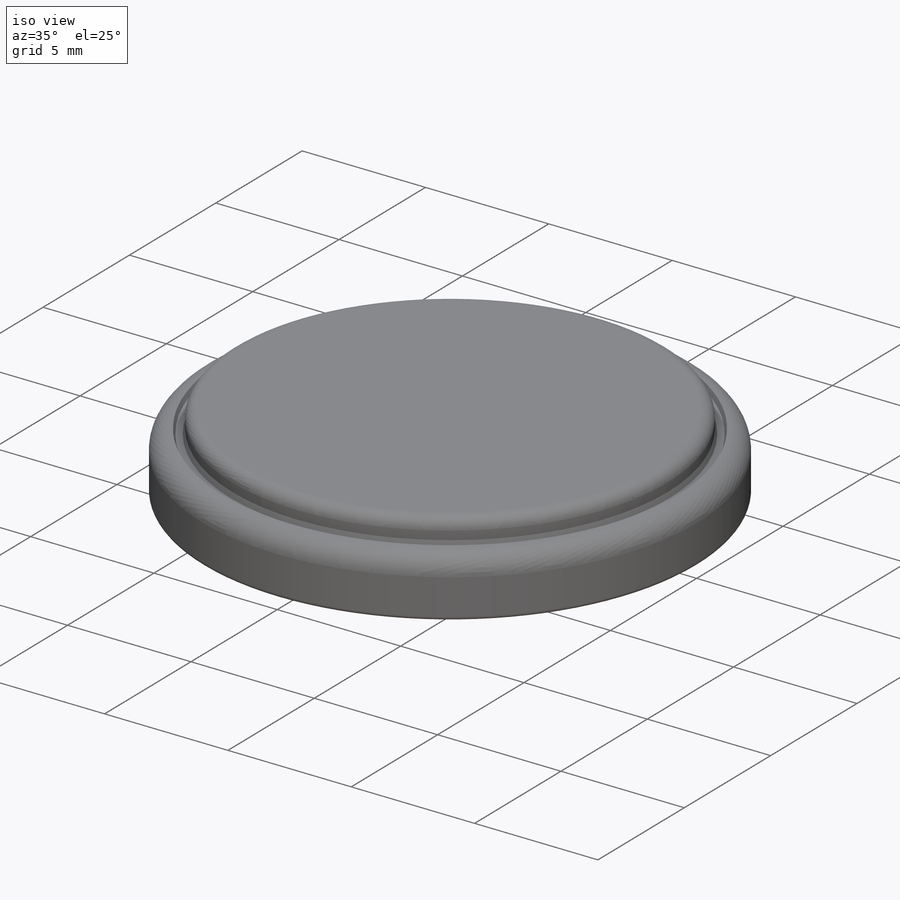
[diagram: iso view]
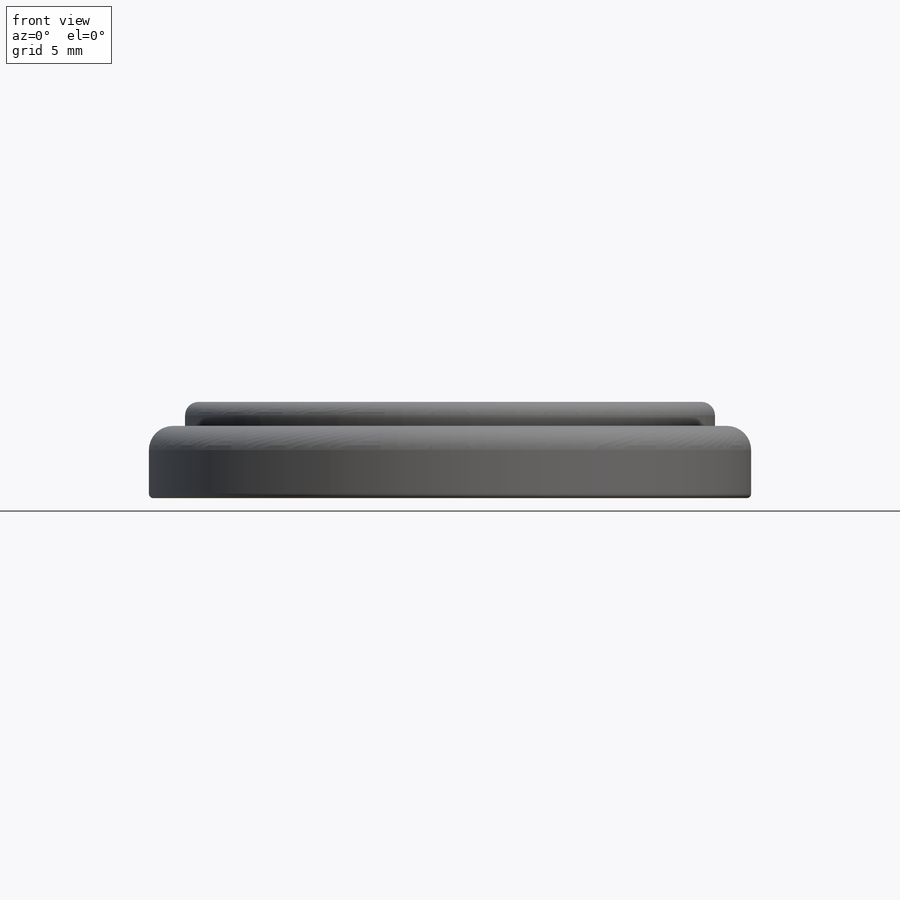
[diagram: front view]
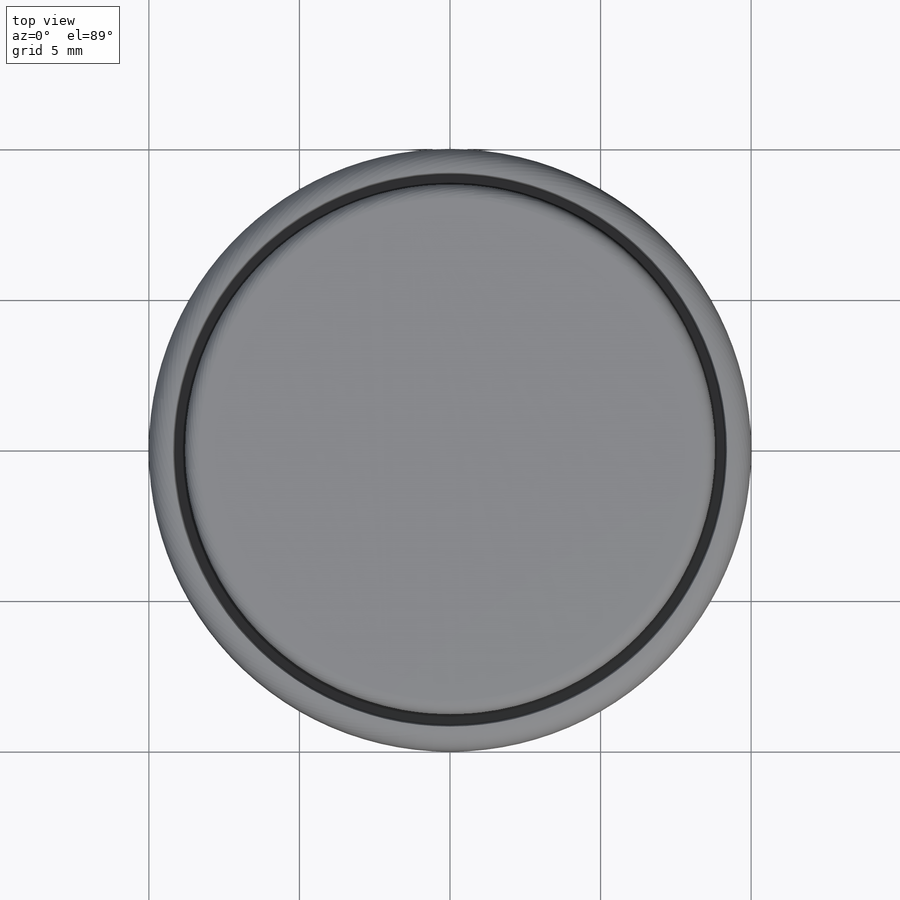
[diagram: top view]
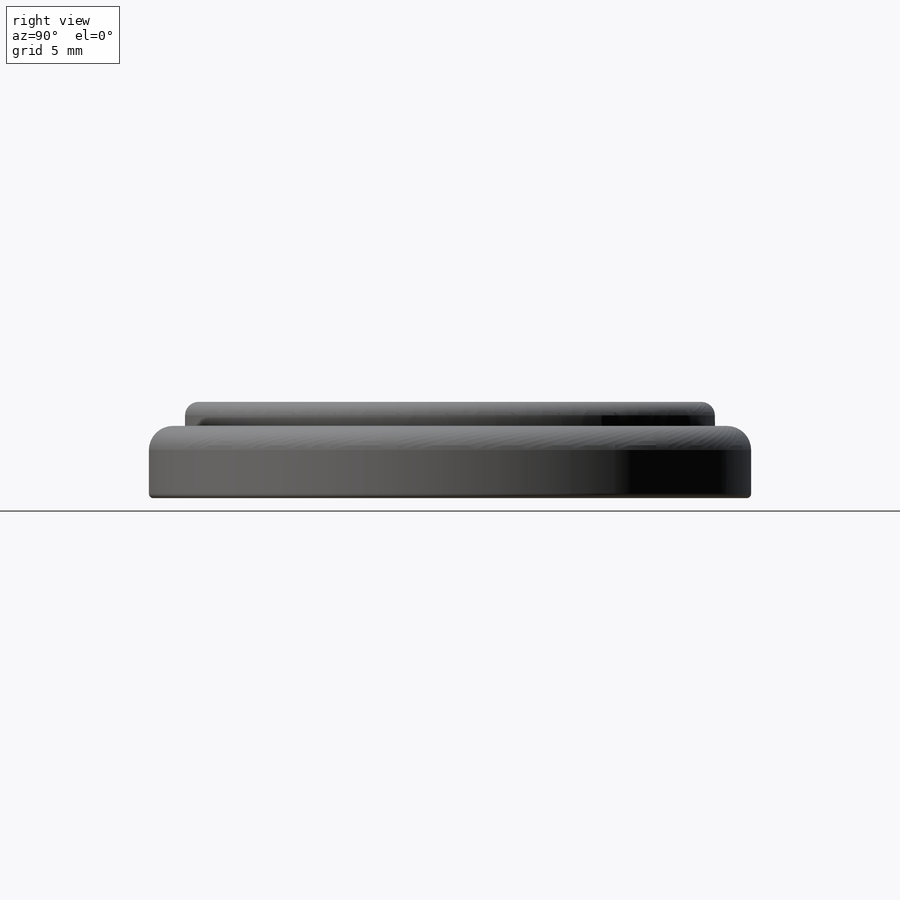
[diagram: right view]
SOLIDWORKS PART (.sldprt)
format: sldprt  version: not decoded by parser v0  size: 271,872 bytes
history: native  units: mm
features: sketch x4, fillet x3, extrude x2, material x1, cut_extrude x1 (+12 scaffold rows collapsed)
feature tree (23):
  scaffold x12  (default folders/planes/origin — collapsed)
  material  "Material <not specified>"
  sketch  "Sketch1"  dims[D1=20.0mm]
  extrude  "Extrude1"  Depth=2.4mm
  sketch  "Sketch2"  dims[D1=17.6mm]
  extrude  "Extrude2"  Depth=3.2mm
  fillet  "Fillet1"  Radius=0.8mm
  fillet  "Fillet2"  Radius=0.15mm
  fillet  "Fillet3"  Radius=0.45mm
  sketch  "Sketch3"  dims[D1=0.0mm]
  cut_extrude  "Cut-Extrude2"  Depth=0.2mm
  sketch  "Component_Outline"
decode coverage: 9 of 10 modeling features carry decoded parameters
note: suppression state not decoded; provenance and decode notes live in map.json
